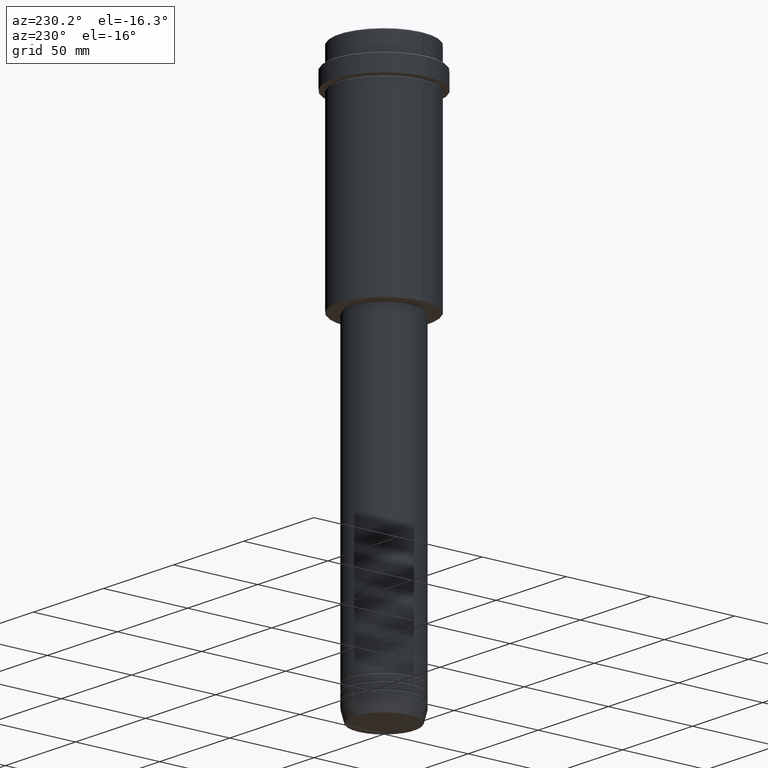
[diagram: clean part render]
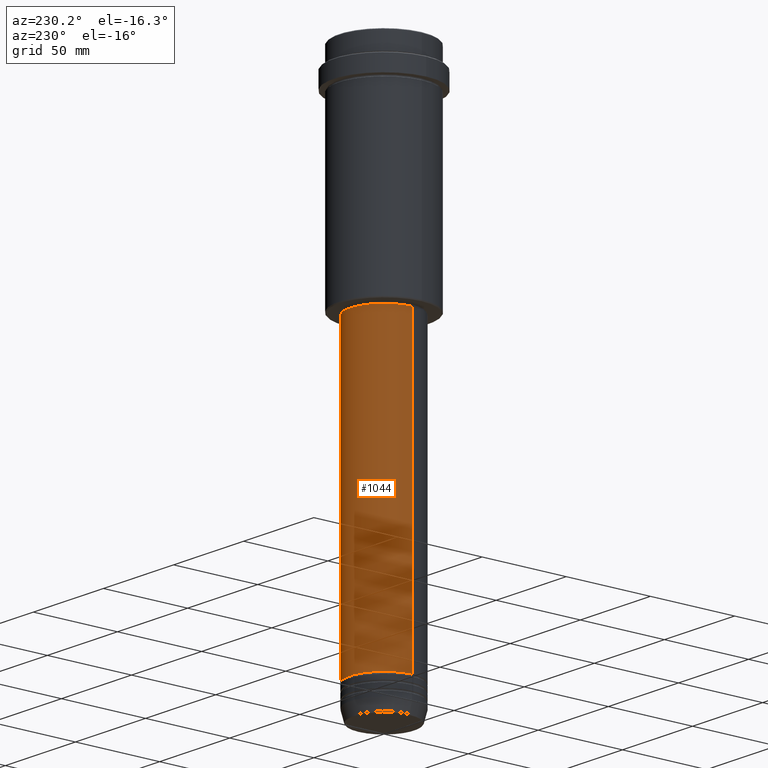
[diagram: same view with one face highlighted and labeled with its STEP entity id]
A machine part, auxiliary view. The second image highlights one B-rep face of the part: STEP entity #1044.
In plain terms, the highlighted cylindrical surface (partial cylindrical patch) has radius 20 mm, axis along (-0, -0, 1).
Its self-contained STEP definition (entity closure, byte-faithful):
#112 = DIRECTION ( 'NONE',  ( 1.000000000000000000, 0.000000000000000000, 0.000000000000000000 ) ) ;
#154 = DIRECTION ( 'NONE',  ( -0.000000000000000000, -0.000000000000000000, 1.000000000000000000 ) ) ;
#223 = CARTESIAN_POINT ( 'NONE',  ( -19.99999999999999645, 2.449293598294706119E-15, -128.9999999999999147 ) ) ;
#235 = ORIENTED_EDGE ( 'NONE', *, *, #1392, .T. ) ;
#250 = CARTESIAN_POINT ( 'NONE',  ( 19.99999999999999645, 0.000000000000000000, -128.9999999999999147 ) ) ;
#305 = ORIENTED_EDGE ( 'NONE', *, *, #908, .F. ) ;
#351 = DIRECTION ( 'NONE',  ( -0.000000000000000000, -0.000000000000000000, 1.000000000000000000 ) ) ;
#357 = CARTESIAN_POINT ( 'NONE',  ( 0.000000000000000000, 0.000000000000000000, -303.9999999999998863 ) ) ;
#427 = CARTESIAN_POINT ( 'NONE',  ( 0.000000000000000000, 0.000000000000000000, -128.9999999999999147 ) ) ;
#523 = EDGE_CURVE ( 'NONE', #1224, #734, #1334, .T. ) ;
#538 = CARTESIAN_POINT ( 'NONE',  ( 19.99999999999999645, 0.000000000000000000, 0.000000000000000000 ) ) ;
#541 = ORIENTED_EDGE ( 'NONE', *, *, #1061, .T. ) ;
#668 = CARTESIAN_POINT ( 'NONE',  ( -20.00000000000000000, 2.449293598294706513E-15, -303.9999999999998863 ) ) ;
#734 = VERTEX_POINT ( 'NONE', #250 ) ;
#758 = AXIS2_PLACEMENT_3D ( 'NONE', #357, #154, #1034 ) ;
#788 = FACE_OUTER_BOUND ( 'NONE', #975, .T. ) ;
#869 = DIRECTION ( 'NONE',  ( -0.000000000000000000, -0.000000000000000000, 1.000000000000000000 ) ) ;
#888 = CIRCLE ( 'NONE', #1196, 19.99999999999999645 ) ;
#908 = EDGE_CURVE ( 'NONE', #734, #919, #888, .T. ) ;
#919 = VERTEX_POINT ( 'NONE', #223 ) ;
#974 = LINE ( 'NONE', #1412, #1080 ) ;
#975 = EDGE_LOOP ( 'NONE', ( #541, #235, #305, #979 ) ) ;
#979 = ORIENTED_EDGE ( 'NONE', *, *, #523, .F. ) ;
#1002 = DIRECTION ( 'NONE',  ( -0.000000000000000000, -0.000000000000000000, 1.000000000000000000 ) ) ;
#1028 = DIRECTION ( 'NONE',  ( 1.000000000000000000, 0.000000000000000000, 0.000000000000000000 ) ) ;
#1034 = DIRECTION ( 'NONE',  ( 1.000000000000000000, 0.000000000000000000, 0.000000000000000000 ) ) ;
#1044 = ADVANCED_FACE ( 'NONE', ( #788 ), #1347, .T. ) ;
#1061 = EDGE_CURVE ( 'NONE', #1224, #1085, #1396, .T. ) ;
#1080 = VECTOR ( 'NONE', #1294, 1000.000000000000000 ) ;
#1085 = VERTEX_POINT ( 'NONE', #668 ) ;
#1123 = CARTESIAN_POINT ( 'NONE',  ( 0.000000000000000000, 0.000000000000000000, 0.000000000000000000 ) ) ;
#1156 = CARTESIAN_POINT ( 'NONE',  ( 20.00000000000000000, 0.000000000000000000, -303.9999999999998863 ) ) ;
#1196 = AXIS2_PLACEMENT_3D ( 'NONE', #427, #869, #112 ) ;
#1224 = VERTEX_POINT ( 'NONE', #1156 ) ;
#1243 = VECTOR ( 'NONE', #1002, 1000.000000000000000 ) ;
#1263 = AXIS2_PLACEMENT_3D ( 'NONE', #1123, #351, #1028 ) ;
#1294 = DIRECTION ( 'NONE',  ( -0.000000000000000000, -0.000000000000000000, 1.000000000000000000 ) ) ;
#1334 = LINE ( 'NONE', #538, #1243 ) ;
#1347 = CYLINDRICAL_SURFACE ( 'NONE', #1263, 19.99999999999999645 ) ;
#1392 = EDGE_CURVE ( 'NONE', #1085, #919, #974, .T. ) ;
#1396 = CIRCLE ( 'NONE', #758, 20.00000000000000000 ) ;
#1412 = CARTESIAN_POINT ( 'NONE',  ( -19.99999999999999645, 2.449293598294706119E-15, 0.000000000000000000 ) ) ;